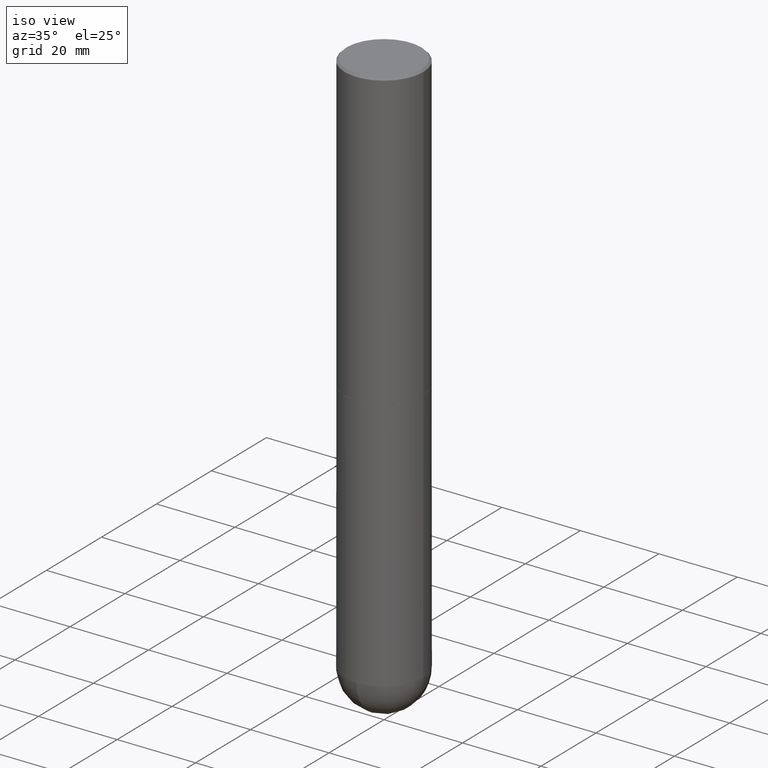
[diagram: clean part render]
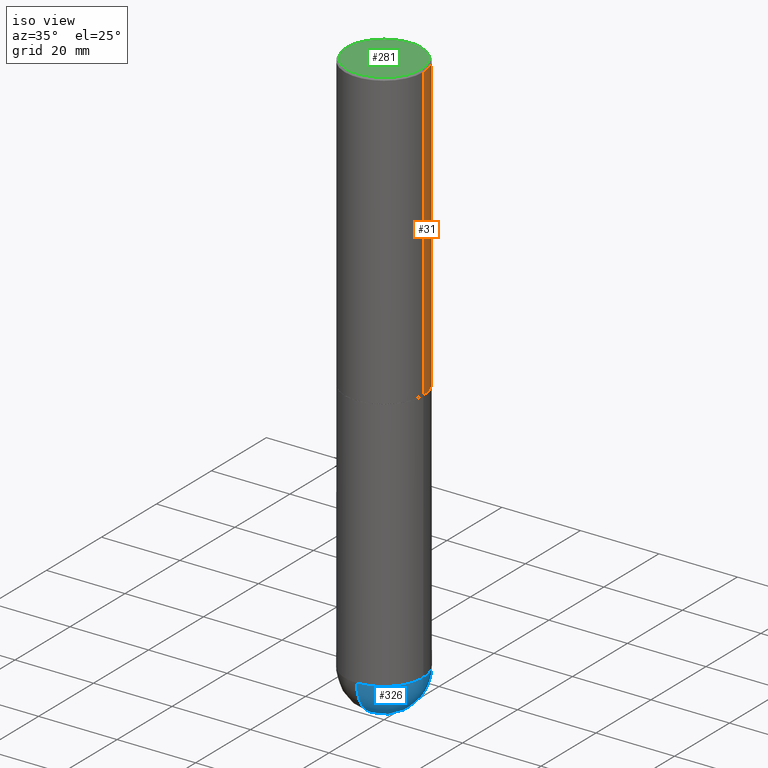
[diagram: same view with three faces highlighted in distinct colors, each labeled with its STEP entity id]
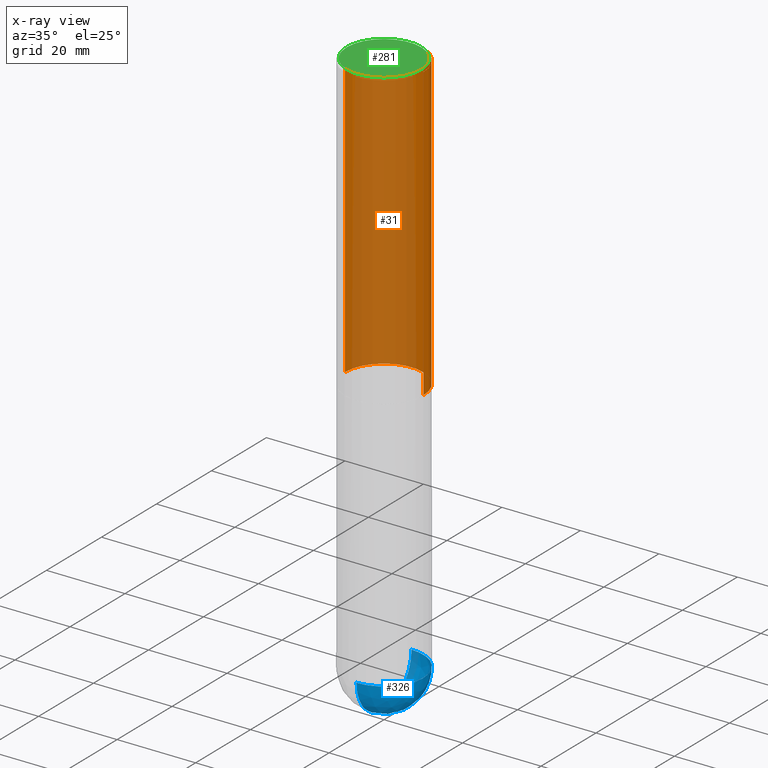
[diagram: x-ray of the same camera — body ghosted, the three highlighted faces saturated]
A machine part, iso view with three faces highlighted in distinct colors.
The next image is the same camera in x-ray (body ghosted, the three faces saturated) — at least one of them is partly hidden behind the body in this view.
Their STEP definitions:

[orange] entity #31 — the highlighted cylindrical surface (partial cylindrical patch) has radius 10 mm, axis along (-0, 0, 1).
#17 = AXIS2_PLACEMENT_3D ( 'NONE', #404, #73, #376 ) ;
#21 = FACE_OUTER_BOUND ( 'NONE', #42, .T. ) ;
#24 = CARTESIAN_POINT ( 'NONE',  ( 0.3937000000000001609, -2.749192406205084400E-15, 1.919750796630860732E-29 ) ) ;
#31 = ADVANCED_FACE ( 'NONE', ( #21 ), #145, .T. ) ;
#42 = EDGE_LOOP ( 'NONE', ( #69, #168, #291, #58 ) ) ;
#48 = CIRCLE ( 'NONE', #268, 0.3937000000000000499 ) ;
#58 = ORIENTED_EDGE ( 'NONE', *, *, #75, .F. ) ;
#59 = CARTESIAN_POINT ( 'NONE',  ( -0.3937000000000003830, -2.390410796632568923E-15, -2.951700000000000212 ) ) ;
#69 = ORIENTED_EDGE ( 'NONE', *, *, #253, .T. ) ;
#73 = DIRECTION ( 'NONE',  ( -2.445468806185136597E-29, 3.491481338843145583E-15, 1.000000000000000000 ) ) ;
#75 = EDGE_CURVE ( 'NONE', #266, #230, #208, .T. ) ;
#82 = AXIS2_PLACEMENT_3D ( 'NONE', #210, #353, #84 ) ;
#84 = DIRECTION ( 'NONE',  ( 1.000000000000000000, -6.982962677686269077E-15, 0.000000000000000000 ) ) ;
#89 = EDGE_CURVE ( 'NONE', #237, #292, #209, .T. ) ;
#122 = CARTESIAN_POINT ( 'NONE',  ( 0.3937000000000000499, -2.770807688499515734E-15, -0.02000000000000009062 ) ) ;
#145 = CYLINDRICAL_SURFACE ( 'NONE', #17, 0.3937000000000001609 ) ;
#156 = CARTESIAN_POINT ( 'NONE',  ( 4.890937612370295054E-31, -6.982962677686322424E-17, -0.02000000000000009062 ) ) ;
#168 = ORIENTED_EDGE ( 'NONE', *, *, #89, .T. ) ;
#175 = VECTOR ( 'NONE', #202, 39.37007874015748143 ) ;
#177 = DIRECTION ( 'NONE',  ( -2.445468806185136877E-29, 3.491481338843145188E-15, 1.000000000000000000 ) ) ;
#202 = DIRECTION ( 'NONE',  ( -2.445468806185136877E-29, 3.491481338843145188E-15, 1.000000000000000000 ) ) ;
#208 = LINE ( 'NONE', #24, #175 ) ;
#209 = LINE ( 'NONE', #269, #285 ) ;
#210 = CARTESIAN_POINT ( 'NONE',  ( 7.218290275216666916E-29, -1.030580546786331359E-14, -2.951700000000000212 ) ) ;
#230 = VERTEX_POINT ( 'NONE', #122 ) ;
#237 = VERTEX_POINT ( 'NONE', #59 ) ;
#253 = EDGE_CURVE ( 'NONE', #266, #237, #267, .T. ) ;
#256 = DIRECTION ( 'NONE',  ( 1.000000000000000000, -6.982962677686265922E-15, 0.000000000000000000 ) ) ;
#261 = DIRECTION ( 'NONE',  ( -2.445468806185136597E-29, 3.491481338843145583E-15, 1.000000000000000000 ) ) ;
#266 = VERTEX_POINT ( 'NONE', #342 ) ;
#267 = CIRCLE ( 'NONE', #82, 0.3937000000000002720 ) ;
#268 = AXIS2_PLACEMENT_3D ( 'NONE', #156, #261, #256 ) ;
#269 = CARTESIAN_POINT ( 'NONE',  ( -0.3937000000000001609, 2.797406750687515575E-15, -1.936584745033357296E-29 ) ) ;
#285 = VECTOR ( 'NONE', #177, 39.37007874015748143 ) ;
#291 = ORIENTED_EDGE ( 'NONE', *, *, #361, .F. ) ;
#292 = VERTEX_POINT ( 'NONE', #346 ) ;
#342 = CARTESIAN_POINT ( 'NONE',  ( 0.3937000000000002720, -1.305499787406839996E-14, -2.951700000000000212 ) ) ;
#346 = CARTESIAN_POINT ( 'NONE',  ( -0.3937000000000000499, 2.679362779428219918E-15, -0.02000000000000009062 ) ) ;
#353 = DIRECTION ( 'NONE',  ( -2.445468806185136597E-29, 3.491481338843145583E-15, 1.000000000000000000 ) ) ;
#361 = EDGE_CURVE ( 'NONE', #230, #292, #48, .T. ) ;
#376 = DIRECTION ( 'NONE',  ( 1.000000000000000000, -6.982962677686266711E-15, 4.876176775795935793E-29 ) ) ;
#404 = CARTESIAN_POINT ( 'NONE',  ( 0.000000000000000000, 0.000000000000000000, 0.000000000000000000 ) ) ;

[blue] entity #326 — the highlighted spherical surface has radius 10 mm.
#19 = DIRECTION ( 'NONE',  ( -2.445468806185136597E-29, 3.491481338843145583E-15, 1.000000000000000000 ) ) ;
#26 = FACE_OUTER_BOUND ( 'NONE', #154, .T. ) ;
#38 = VERTEX_POINT ( 'NONE', #398 ) ;
#51 = EDGE_CURVE ( 'NONE', #38, #159, #219, .T. ) ;
#56 = EDGE_CURVE ( 'NONE', #38, #128, #199, .T. ) ;
#64 = ORIENTED_EDGE ( 'NONE', *, *, #160, .F. ) ;
#101 = AXIS2_PLACEMENT_3D ( 'NONE', #178, #374, #310 ) ;
#102 = CIRCLE ( 'NONE', #132, 0.3937000000000001054 ) ;
#107 = DIRECTION ( 'NONE',  ( 1.000000000000000000, -6.982962677686266711E-15, 0.000000000000000000 ) ) ;
#128 = VERTEX_POINT ( 'NONE', #298 ) ;
#132 = AXIS2_PLACEMENT_3D ( 'NONE', #359, #386, #290 ) ;
#134 = ORIENTED_EDGE ( 'NONE', *, *, #56, .F. ) ;
#142 = CARTESIAN_POINT ( 'NONE',  ( 1.347893496593123646E-28, -1.924434684343564878E-14, -5.511800000000000033 ) ) ;
#154 = EDGE_LOOP ( 'NONE', ( #134, #225, #64, #325 ) ) ;
#159 = VERTEX_POINT ( 'NONE', #306 ) ;
#160 = EDGE_CURVE ( 'NONE', #259, #159, #250, .T. ) ;
#178 = CARTESIAN_POINT ( 'NONE',  ( 1.314781518801735134E-28, -1.971852921157570065E-14, -5.511800000000000033 ) ) ;
#180 = DIRECTION ( 'NONE',  ( 6.982962677686265922E-15, 1.000000000000000000, -2.775563112689116301E-15 ) ) ;
#199 = CIRCLE ( 'NONE', #101, 0.3937000000000001054 ) ;
#205 = DIRECTION ( 'NONE',  ( 6.982962677686265133E-15, 1.000000000000000000, 0.000000000000000000 ) ) ;
#214 = CARTESIAN_POINT ( 'NONE',  ( 1.314781518801735134E-28, -1.971852921157570065E-14, -5.511800000000000033 ) ) ;
#219 = CIRCLE ( 'NONE', #391, 0.3937000000000001054 ) ;
#225 = ORIENTED_EDGE ( 'NONE', *, *, #51, .T. ) ;
#249 = AXIS2_PLACEMENT_3D ( 'NONE', #214, #344, #180 ) ;
#250 = CIRCLE ( 'NONE', #304, 0.3937000000000001054 ) ;
#259 = VERTEX_POINT ( 'NONE', #410 ) ;
#271 = CARTESIAN_POINT ( 'NONE',  ( 1.314781518801735134E-28, -1.971852921157570065E-14, -5.511800000000000033 ) ) ;
#290 = DIRECTION ( 'NONE',  ( 1.000000000000000000, -6.982962677686266711E-15, 0.000000000000000000 ) ) ;
#298 = CARTESIAN_POINT ( 'NONE',  ( -2.797406750687381075E-15, -0.3937000000000196454, -5.511799999999999145 ) ) ;
#304 = AXIS2_PLACEMENT_3D ( 'NONE', #142, #19, #107 ) ;
#306 = CARTESIAN_POINT ( 'NONE',  ( 2.749192406205216928E-15, 0.3936999999999805655, -5.511800000000000921 ) ) ;
#310 = DIRECTION ( 'NONE',  ( -7.105427357601001070E-15, -1.000000000000000000, 0.000000000000000000 ) ) ;
#325 = ORIENTED_EDGE ( 'NONE', *, *, #402, .F. ) ;
#326 = ADVANCED_FACE ( 'NONE', ( #26 ), #406, .T. ) ;
#340 = DIRECTION ( 'NONE',  ( 1.000000000000000000, -6.982962677686265922E-15, 4.883557194083112340E-29 ) ) ;
#344 = DIRECTION ( 'NONE',  ( -1.000000000000000000, 6.982962677686265922E-15, -4.883557194083112340E-29 ) ) ;
#359 = CARTESIAN_POINT ( 'NONE',  ( 1.347893496593123646E-28, -1.924434684343564878E-14, -5.511800000000000033 ) ) ;
#374 = DIRECTION ( 'NONE',  ( -1.000000000000000000, 7.105427357601001070E-15, -4.926315508542082329E-29 ) ) ;
#386 = DIRECTION ( 'NONE',  ( -2.445468806185136597E-29, 3.491481338843145583E-15, 1.000000000000000000 ) ) ;
#391 = AXIS2_PLACEMENT_3D ( 'NONE', #271, #340, #205 ) ;
#398 = CARTESIAN_POINT ( 'NONE',  ( 1.412743020541493694E-28, -2.106901824243703318E-14, -5.905499999999999972 ) ) ;
#402 = EDGE_CURVE ( 'NONE', #128, #259, #102, .T. ) ;
#406 = SPHERICAL_SURFACE ( 'NONE', #249, 0.3937000000000001054 ) ;
#410 = CARTESIAN_POINT ( 'NONE',  ( 0.3937000000000001054, -1.752601430252398275E-14, -5.511800000000000033 ) ) ;

[green] entity #281 — the highlighted planar face has unit normal (0, -0, -1).
#22 = CIRCLE ( 'NONE', #329, 0.3736999999999996991 ) ;
#27 = DIRECTION ( 'NONE',  ( -2.445468806185136597E-29, 3.491481338843145583E-15, 1.000000000000000000 ) ) ;
#33 = AXIS2_PLACEMENT_3D ( 'NONE', #148, #27, #81 ) ;
#44 = DIRECTION ( 'NONE',  ( 1.000000000000000000, -6.982962677686266711E-15, 4.869618210878415705E-29 ) ) ;
#81 = DIRECTION ( 'NONE',  ( 1.000000000000000000, -6.982962677686266711E-15, 4.869618210878415705E-29 ) ) ;
#90 = CARTESIAN_POINT ( 'NONE',  ( 0.3736999999999996991, -2.667287895133366781E-15, 2.774533118565451882E-16 ) ) ;
#94 = CIRCLE ( 'NONE', #33, 0.3736999999999996991 ) ;
#115 = CARTESIAN_POINT ( 'NONE',  ( -0.3736999999999996991, 2.644447966039788269E-15, 2.774533118565083582E-16 ) ) ;
#123 = EDGE_CURVE ( 'NONE', #218, #395, #22, .T. ) ;
#129 = EDGE_LOOP ( 'NONE', ( #295, #216 ) ) ;
#148 = CARTESIAN_POINT ( 'NONE',  ( -6.785034193178928885E-45, 9.687230607472908306E-31, 2.774533118565267485E-16 ) ) ;
#176 = DIRECTION ( 'NONE',  ( -2.445468806185136597E-29, 3.491481338843145583E-15, 1.000000000000000000 ) ) ;
#186 = CARTESIAN_POINT ( 'NONE',  ( 2.609533152651355437E-15, 0.3736999999999996991, -1.166039920397419176E-15 ) ) ;
#216 = ORIENTED_EDGE ( 'NONE', *, *, #231, .T. ) ;
#218 = VERTEX_POINT ( 'NONE', #115 ) ;
#221 = DIRECTION ( 'NONE',  ( -1.000000000000000000, 6.982962677686265922E-15, -4.876176775795935793E-29 ) ) ;
#231 = EDGE_CURVE ( 'NONE', #395, #218, #94, .T. ) ;
#254 = FACE_OUTER_BOUND ( 'NONE', #129, .T. ) ;
#281 = ADVANCED_FACE ( 'NONE', ( #254 ), #349, .F. ) ;
#295 = ORIENTED_EDGE ( 'NONE', *, *, #123, .T. ) ;
#329 = AXIS2_PLACEMENT_3D ( 'NONE', #341, #176, #44 ) ;
#341 = CARTESIAN_POINT ( 'NONE',  ( -6.785034193178928885E-45, 9.687230607472908306E-31, 2.774533118565267485E-16 ) ) ;
#349 = PLANE ( 'NONE',  #379 ) ;
#379 = AXIS2_PLACEMENT_3D ( 'NONE', #186, #384, #221 ) ;
#384 = DIRECTION ( 'NONE',  ( 2.438088387897960049E-29, -3.491481338843145188E-15, -1.000000000000000000 ) ) ;
#395 = VERTEX_POINT ( 'NONE', #90 ) ;